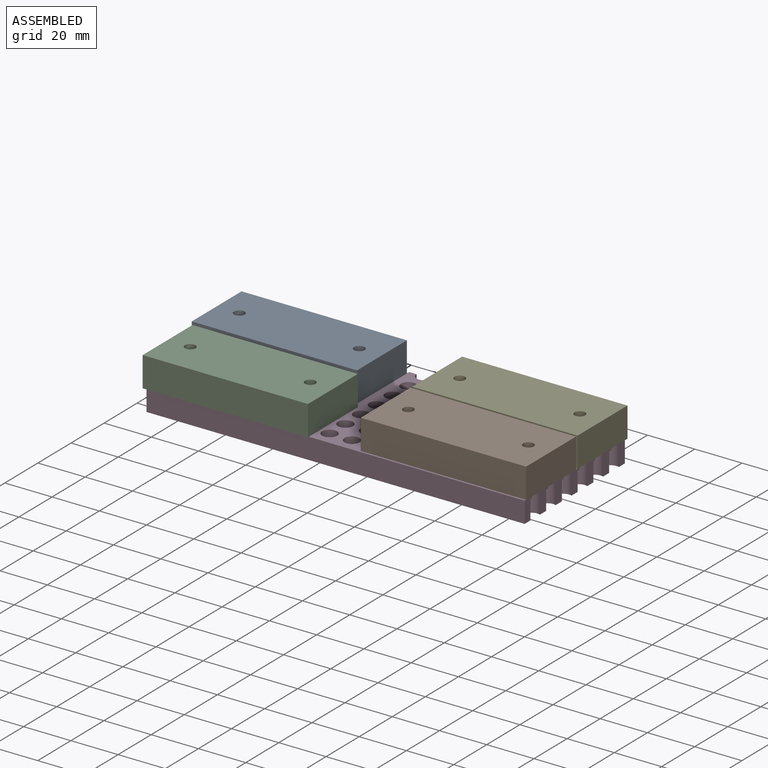
[diagram: assembled view]
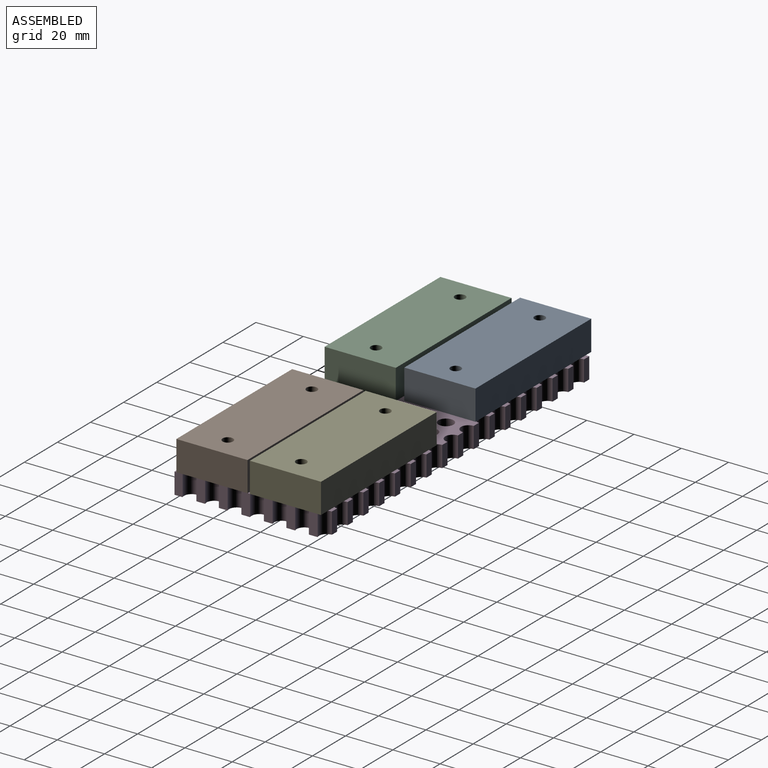
[diagram: assembled view, second angle]
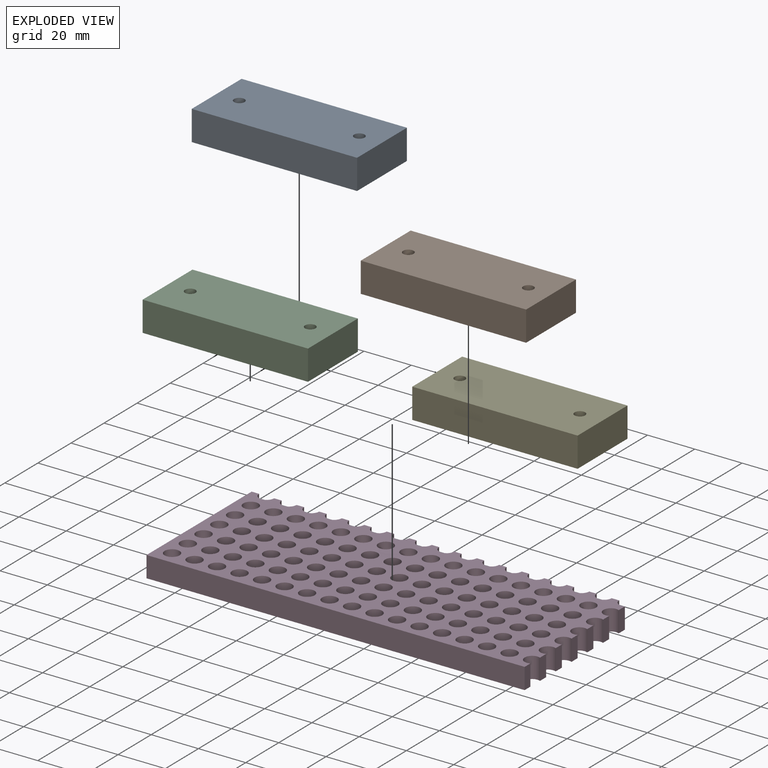
[diagram: exploded view]
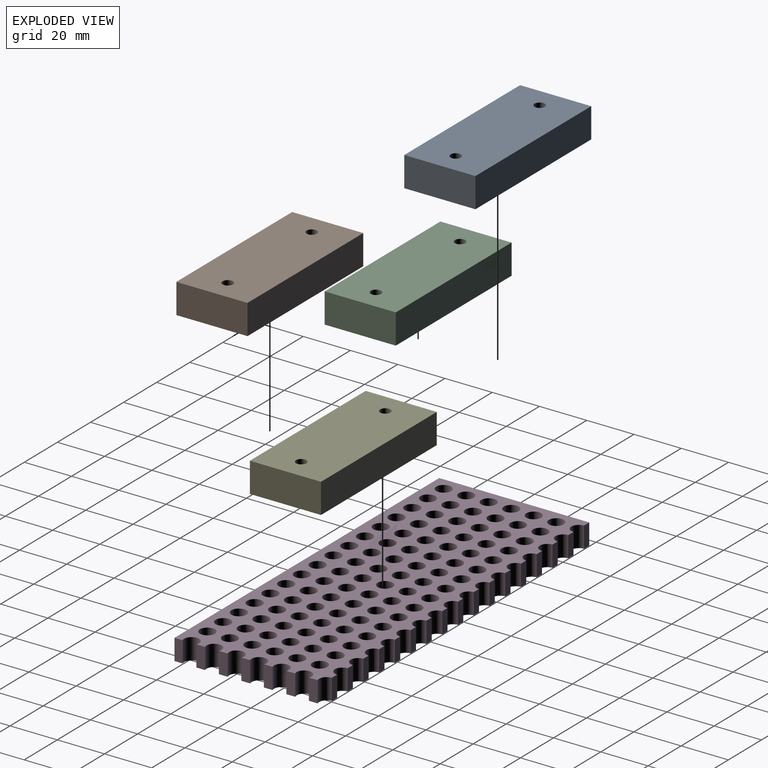
[diagram: exploded view, second angle]
ASSEMBLY  parts=5 mates=4
PART A: 8 faces, bbox 30.1x70x12.7 mm
  f0: plane 30.12x12.7mm, normal (0,-1,0), area 382.6mm2, adj f1,f3,f4,f5
  f1: plane 69.98x12.7mm, normal (1,0,0), area 888.7mm2, adj f0,f2,f4,f5
  f2: plane 30.12x12.7mm, normal (0,1,0), area 382.6mm2, adj f1,f3,f4,f5
  f3: plane 69.98x12.7mm, normal (-1,0,0), area 888.7mm2, adj f0,f2,f4,f5
  f4: plane 69.98x30.12mm, normal (0,0,1), area 2077mm2, adj f0,f1,f2,f3,f6,f7
  f5: plane 69.98x30.12mm, normal (0,0,-1), area 2077mm2, adj f0,f1,f2,f3,f6,f7
  f6: cylinder r=2.22mm len=12.7mm, axis (0,0,1), area 177.3mm2, adj f4,f5
  f7: cylinder r=2.22mm len=12.7mm, axis (0,0,1), area 177.3mm2, adj f4,f5
PART B: same geometry as A
PART C: same geometry as A
PART D: 147 faces, bbox 160x63.5x8.9 mm
  f0: plane 8.89x3.71mm, normal (1,0,0), area 32.9mm2, adj f26,f27,f66,f67
  f1: plane 8.89x3.71mm, normal (1,0,0), area 32.9mm2, adj f26,f27,f65,f66
  f2: plane 8.89x3.71mm, normal (1,0,0), area 32.9mm2, adj f26,f27,f64,f65
  f3: plane 8.89x3.71mm, normal (1,0,0), area 32.9mm2, adj f26,f27,f63,f64
  f4: plane 8.89x3.71mm, normal (1,0,0), area 32.9mm2, adj f26,f27,f62,f63
  f5: plane 8.89x3.71mm, normal (1,0,0), area 32.9mm2, adj f26,f27,f61,f62
  f6: plane 8.89x3.18mm, normal (0,1,0), area 28.2mm2, adj f26,f27,f37,f82
  f7: plane 8.89x3.18mm, normal (0,1,0), area 28.2mm2, adj f26,f27,f81,f82
  f8: plane 8.89x3.18mm, normal (0,1,0), area 28.2mm2, adj f26,f27,f80,f81
  f9: plane 8.89x3.18mm, normal (0,1,0), area 28.2mm2, adj f26,f27,f79,f80
  f10: plane 8.89x3.18mm, normal (0,1,0), area 28.2mm2, adj f26,f27,f78,f79
  f11: plane 8.89x3.18mm, normal (0,1,0), area 28.2mm2, adj f26,f27,f77,f78
  f12: plane 8.89x3.18mm, normal (0,1,0), area 28.2mm2, adj f26,f27,f76,f77
  f13: plane 8.89x3.18mm, normal (0,1,0), area 28.2mm2, adj f26,f27,f75,f76
  f14: plane 8.89x3.18mm, normal (0,1,0), area 28.2mm2, adj f26,f27,f74,f75
  f15: plane 8.89x3.18mm, normal (0,1,0), area 28.2mm2, adj f26,f27,f73,f74
  f16: plane 8.89x3.18mm, normal (0,1,0), area 28.2mm2, adj f26,f27,f72,f73
  f17: plane 8.89x3.18mm, normal (0,1,0), area 28.2mm2, adj f26,f27,f71,f72
  f18: plane 8.89x3.18mm, normal (0,1,0), area 28.2mm2, adj f26,f27,f70,f71
  f19: plane 8.89x3.18mm, normal (0,1,0), area 28.2mm2, adj f26,f27,f69,f70
  f20: plane 8.89x3.18mm, normal (0,1,0), area 28.2mm2, adj f26,f27,f68,f69
  f21: plane 8.89x3.18mm, normal (0,1,0), area 28.2mm2, adj f25,f26,f27,f37
  f22: plane 160.02x8.89mm, normal (0,-1,0), area 1422.6mm2, adj f23,f25,f26,f27
  f23: plane 8.89x3.44mm, normal (1,0,0), area 30.6mm2, adj f22,f26,f27,f67
  f24: plane 8.89x3.18mm, normal (0,1,0), area 28.2mm2, adj f26,f27,f61,f68
  f25: plane 63.5x8.89mm, normal (-1,0,0), area 564.5mm2, adj f21,f22,f26,f27
  f26: plane 160.02x63.5mm, normal (0,0,1), area 6713.8mm2, adj f0,f1,f2,f3,f4,f5,f6,f7
  f27: plane 160.02x63.5mm, normal (0,0,-1), area 6713.8mm2, adj f0,f1,f2,f3,f4,f5,f6,f7
  f28: cylinder r=3.17mm len=8.89mm, axis (0,0,1), area 177.3mm2, adj f26,f27
  f29: cylinder r=3.17mm len=8.89mm, axis (0,0,1), area 177.3mm2, adj f26,f27
  f30: cylinder r=3.17mm len=8.89mm, axis (0,0,1), area 177.3mm2, adj f26,f27
  f31: cylinder r=3.17mm len=8.89mm, axis (0,0,1), area 177.3mm2, adj f26,f27
  f32: cylinder r=3.17mm len=8.89mm, axis (0,0,1), area 177.3mm2, adj f26,f27
  f33: cylinder r=3.17mm len=8.89mm, axis (0,0,1), area 177.3mm2, adj f26,f27
  f34: cylinder r=3.17mm len=8.89mm, axis (0,0,1), area 177.3mm2, adj f26,f27
  f35: cylinder r=3.17mm len=8.89mm, axis (0,0,1), area 177.3mm2, adj f26,f27
  f36: cylinder r=3.17mm len=8.89mm, axis (0,0,1), area 177.3mm2, adj f26,f27
  f37: cylinder r=3.17mm len=8.89mm, axis (0,0,1), area 88.7mm2, adj f6,f21,f26,f27
  f38: cylinder r=3.17mm len=8.89mm, axis (0,0,1), area 177.3mm2, adj f26,f27
  f39: cylinder r=3.17mm len=8.89mm, axis (0,0,1), area 177.3mm2, adj f26,f27
  f40: cylinder r=3.17mm len=8.89mm, axis (0,0,1), area 177.3mm2, adj f26,f27
  f41: cylinder r=3.17mm len=8.89mm, axis (0,0,1), area 177.3mm2, adj f26,f27
  f42: cylinder r=3.17mm len=8.89mm, axis (0,0,1), area 177.3mm2, adj f26,f27
  f43: cylinder r=3.17mm len=8.89mm, axis (0,0,1), area 177.3mm2, adj f26,f27
  f44: cylinder r=3.17mm len=8.89mm, axis (0,0,1), area 177.3mm2, adj f26,f27
  f45: cylinder r=3.17mm len=8.89mm, axis (0,0,1), area 177.3mm2, adj f26,f27
  f46: cylinder r=3.17mm len=8.89mm, axis (0,0,1), area 177.3mm2, adj f26,f27
  f47: cylinder r=3.17mm len=8.89mm, axis (0,0,1), area 177.3mm2, adj f26,f27
  f48: cylinder r=3.17mm len=8.89mm, axis (0,0,1), area 177.3mm2, adj f26,f27
  f49: cylinder r=3.17mm len=8.89mm, axis (0,0,1), area 177.3mm2, adj f26,f27
  f50: cylinder r=3.17mm len=8.89mm, axis (0,0,1), area 177.3mm2, adj f26,f27
  f51: cylinder r=3.17mm len=8.89mm, axis (0,0,1), area 177.3mm2, adj f26,f27
  f52: cylinder r=3.17mm len=8.89mm, axis (0,0,1), area 177.3mm2, adj f26,f27
  f53: cylinder r=3.17mm len=8.89mm, axis (0,0,1), area 177.3mm2, adj f26,f27
  f54: cylinder r=3.17mm len=8.89mm, axis (0,0,1), area 177.3mm2, adj f26,f27
  f55: cylinder r=3.17mm len=8.89mm, axis (0,0,1), area 177.3mm2, adj f26,f27
  f56: cylinder r=3.17mm len=8.89mm, axis (0,0,1), area 177.3mm2, adj f26,f27
  f57: cylinder r=3.17mm len=8.89mm, axis (0,0,1), area 177.3mm2, adj f26,f27
  f58: cylinder r=3.17mm len=8.89mm, axis (0,0,1), area 177.3mm2, adj f26,f27
  f59: cylinder r=3.17mm len=8.89mm, axis (0,0,1), area 177.3mm2, adj f26,f27
  f60: cylinder r=3.17mm len=8.89mm, axis (0,0,1), area 177.3mm2, adj f26,f27
  f61: cylinder r=3.17mm len=8.89mm, axis (0,0,1), area 56mm2, adj f5,f24,f26,f27
  f62: cylinder r=3.17mm len=8.89mm, axis (0,0,1), area 111.9mm2, adj f4,f5,f26,f27
  f63: cylinder r=3.17mm len=8.89mm, axis (0,0,1), area 111.9mm2, adj f3,f4,f26,f27
  f64: cylinder r=3.17mm len=8.89mm, axis (0,0,1), area 111.9mm2, adj f2,f3,f26,f27
  f65: cylinder r=3.17mm len=8.89mm, axis (0,0,1), area 111.9mm2, adj f1,f2,f26,f27
  f66: cylinder r=3.17mm len=8.89mm, axis (0,0,1), area 111.9mm2, adj f0,f1,f26,f27
  f67: cylinder r=3.17mm len=8.89mm, axis (0,0,1), area 111.9mm2, adj f0,f23,f26,f27
  f68: cylinder r=3.17mm len=8.89mm, axis (0,0,1), area 88.7mm2, adj f20,f24,f26,f27
  f69: cylinder r=3.17mm len=8.89mm, axis (0,0,1), area 88.7mm2, adj f19,f20,f26,f27
  f70: cylinder r=3.17mm len=8.89mm, axis (0,0,1), area 88.7mm2, adj f18,f19,f26,f27
  f71: cylinder r=3.17mm len=8.89mm, axis (0,0,1), area 88.7mm2, adj f17,f18,f26,f27
  f72: cylinder r=3.17mm len=8.89mm, axis (0,0,1), area 88.7mm2, adj f16,f17,f26,f27
  f73: cylinder r=3.17mm len=8.89mm, axis (0,0,1), area 88.7mm2, adj f15,f16,f26,f27
  f74: cylinder r=3.17mm len=8.89mm, axis (0,0,1), area 88.7mm2, adj f14,f15,f26,f27
  f75: cylinder r=3.17mm len=8.89mm, axis (0,0,1), area 88.7mm2, adj f13,f14,f26,f27
  f76: cylinder r=3.17mm len=8.89mm, axis (0,0,1), area 88.7mm2, adj f12,f13,f26,f27
  f77: cylinder r=3.17mm len=8.89mm, axis (0,0,1), area 88.7mm2, adj f11,f12,f26,f27
  f78: cylinder r=3.17mm len=8.89mm, axis (0,0,1), area 88.7mm2, adj f10,f11,f26,f27
  f79: cylinder r=3.17mm len=8.89mm, axis (0,0,1), area 88.7mm2, adj f9,f10,f26,f27
  f80: cylinder r=3.17mm len=8.89mm, axis (0,0,1), area 88.7mm2, adj f8,f9,f26,f27
  f81: cylinder r=3.17mm len=8.89mm, axis (0,0,1), area 88.7mm2, adj f7,f8,f26,f27
  f82: cylinder r=3.17mm len=8.89mm, axis (0,0,1), area 88.7mm2, adj f6,f7,f26,f27
  f83: cylinder r=3.17mm len=8.89mm, axis (0,0,1), area 177.3mm2, adj f26,f27
  f84: cylinder r=3.17mm len=8.89mm, axis (0,0,1), area 177.3mm2, adj f26,f27
  f85: cylinder r=3.17mm len=8.89mm, axis (0,0,1), area 177.3mm2, adj f26,f27
  f86: cylinder r=3.17mm len=8.89mm, axis (0,0,1), area 177.3mm2, adj f26,f27
  f87: cylinder r=3.17mm len=8.89mm, axis (0,0,1), area 177.3mm2, adj f26,f27
  f88: cylinder r=3.17mm len=8.89mm, axis (0,0,1), area 177.3mm2, adj f26,f27
  f89: cylinder r=3.17mm len=8.89mm, axis (0,0,1), area 177.3mm2, adj f26,f27
  f90: cylinder r=3.17mm len=8.89mm, axis (0,0,1), area 177.3mm2, adj f26,f27
  f91: cylinder r=3.17mm len=8.89mm, axis (0,0,1), area 177.3mm2, adj f26,f27
  f92: cylinder r=3.17mm len=8.89mm, axis (0,0,1), area 177.3mm2, adj f26,f27
  f93: cylinder r=3.17mm len=8.89mm, axis (0,0,1), area 177.3mm2, adj f26,f27
  f94: cylinder r=3.17mm len=8.89mm, axis (0,0,1), area 177.3mm2, adj f26,f27
  f95: cylinder r=3.17mm len=8.89mm, axis (0,0,1), area 177.3mm2, adj f26,f27
  f96: cylinder r=3.17mm len=8.89mm, axis (0,0,1), area 177.3mm2, adj f26,f27
  f97: cylinder r=3.17mm len=8.89mm, axis (0,0,1), area 177.3mm2, adj f26,f27
  f98: cylinder r=3.17mm len=8.89mm, axis (0,0,1), area 177.3mm2, adj f26,f27
  f99: cylinder r=3.17mm len=8.89mm, axis (0,0,1), area 177.3mm2, adj f26,f27
  f100: cylinder r=3.17mm len=8.89mm, axis (0,0,1), area 177.3mm2, adj f26,f27
  f101: cylinder r=3.17mm len=8.89mm, axis (0,0,1), area 177.3mm2, adj f26,f27
  f102: cylinder r=3.17mm len=8.89mm, axis (0,0,1), area 177.3mm2, adj f26,f27
  f103: cylinder r=3.17mm len=8.89mm, axis (0,0,1), area 177.3mm2, adj f26,f27
  f104: cylinder r=3.17mm len=8.89mm, axis (0,0,1), area 177.3mm2, adj f26,f27
  f105: cylinder r=3.17mm len=8.89mm, axis (0,0,1), area 177.3mm2, adj f26,f27
  f106: cylinder r=3.17mm len=8.89mm, axis (0,0,1), area 177.3mm2, adj f26,f27
  f107: cylinder r=3.17mm len=8.89mm, axis (0,0,1), area 177.3mm2, adj f26,f27
  f108: cylinder r=3.17mm len=8.89mm, axis (0,0,1), area 177.3mm2, adj f26,f27
  f109: cylinder r=3.17mm len=8.89mm, axis (0,0,1), area 177.3mm2, adj f26,f27
  f110: cylinder r=3.17mm len=8.89mm, axis (0,0,1), area 177.3mm2, adj f26,f27
  f111: cylinder r=3.17mm len=8.89mm, axis (0,0,1), area 177.3mm2, adj f26,f27
  f112: cylinder r=3.17mm len=8.89mm, axis (0,0,1), area 177.3mm2, adj f26,f27
  f113: cylinder r=3.17mm len=8.89mm, axis (0,0,1), area 177.3mm2, adj f26,f27
  f114: cylinder r=3.17mm len=8.89mm, axis (0,0,1), area 177.3mm2, adj f26,f27
  f115: cylinder r=3.17mm len=8.89mm, axis (0,0,1), area 177.3mm2, adj f26,f27
  f116: cylinder r=3.17mm len=8.89mm, axis (0,0,1), area 177.3mm2, adj f26,f27
  f117: cylinder r=3.17mm len=8.89mm, axis (0,0,1), area 177.3mm2, adj f26,f27
  f118: cylinder r=3.17mm len=8.89mm, axis (0,0,1), area 177.3mm2, adj f26,f27
  f119: cylinder r=3.17mm len=8.89mm, axis (0,0,1), area 177.3mm2, adj f26,f27
  f120: cylinder r=3.17mm len=8.89mm, axis (0,0,1), area 177.3mm2, adj f26,f27
  f121: cylinder r=3.17mm len=8.89mm, axis (0,0,1), area 177.3mm2, adj f26,f27
  f122: cylinder r=3.17mm len=8.89mm, axis (0,0,1), area 177.3mm2, adj f26,f27
  f123: cylinder r=3.17mm len=8.89mm, axis (0,0,1), area 177.3mm2, adj f26,f27
  f124: cylinder r=3.17mm len=8.89mm, axis (0,0,1), area 177.3mm2, adj f26,f27
  f125: cylinder r=3.17mm len=8.89mm, axis (0,0,1), area 177.3mm2, adj f26,f27
  f126: cylinder r=3.17mm len=8.89mm, axis (0,0,1), area 177.3mm2, adj f26,f27
  f127: cylinder r=3.17mm len=8.89mm, axis (0,0,1), area 177.3mm2, adj f26,f27
  f128: cylinder r=3.17mm len=8.89mm, axis (0,0,1), area 177.3mm2, adj f26,f27
  f129: cylinder r=3.17mm len=8.89mm, axis (0,0,1), area 177.3mm2, adj f26,f27
  f130: cylinder r=3.17mm len=8.89mm, axis (0,0,1), area 177.3mm2, adj f26,f27
  f131: cylinder r=3.17mm len=8.89mm, axis (0,0,1), area 177.3mm2, adj f26,f27
  f132: cylinder r=3.17mm len=8.89mm, axis (0,0,1), area 177.3mm2, adj f26,f27
  f133: cylinder r=3.17mm len=8.89mm, axis (0,0,1), area 177.3mm2, adj f26,f27
  f134: cylinder r=3.17mm len=8.89mm, axis (0,0,1), area 177.3mm2, adj f26,f27
  f135: cylinder r=3.17mm len=8.89mm, axis (0,0,1), area 177.3mm2, adj f26,f27
  f136: cylinder r=3.17mm len=8.89mm, axis (0,0,1), area 177.3mm2, adj f26,f27
  f137: cylinder r=3.17mm len=8.89mm, axis (0,0,1), area 177.3mm2, adj f26,f27
  f138: cylinder r=3.17mm len=8.89mm, axis (0,0,1), area 177.3mm2, adj f26,f27
  f139: cylinder r=3.17mm len=8.89mm, axis (0,0,1), area 177.3mm2, adj f26,f27
  f140: cylinder r=3.17mm len=8.89mm, axis (0,0,1), area 177.3mm2, adj f26,f27
  f141: cylinder r=3.17mm len=8.89mm, axis (0,0,1), area 177.3mm2, adj f26,f27
  f142: cylinder r=3.17mm len=8.89mm, axis (0,0,1), area 177.3mm2, adj f26,f27
  f143: cylinder r=3.17mm len=8.89mm, axis (0,0,1), area 177.3mm2, adj f26,f27
  f144: cylinder r=3.17mm len=8.89mm, axis (0,0,1), area 177.3mm2, adj f26,f27
  f145: cylinder r=3.17mm len=8.89mm, axis (0,0,1), area 177.3mm2, adj f26,f27
  f146: cylinder r=3.17mm len=8.89mm, axis (0,0,1), area 177.3mm2, adj f26,f27
PART E: same geometry as A
PLACE A rot(axis=(0,0,-1),90deg) t=(13.28,-28.8,7.32)mm
PLACE B rot(axis=(0.71,0.71,0),180deg) t=(106.63,50.68,20.02)mm
PLACE C rot(axis=(0.71,0.71,0),180deg) t=(15.19,49.41,20.02)mm
PLACE D t=(-11.62,-20.5,-1.57)mm
PLACE E rot(axis=(0.71,0.71,0),180deg) t=(106.63,81.79,20.02)mm
MATE fastened C.f7 <-> D.f26  axis (0,0,-1) through (-3.37,-5.89,7.32)mm
MATE fastened E.f6 <-> D.f26  axis (0,0,-1) through (138.87,26.49,7.32)mm
MATE fastened B.f6 <-> D.f26  axis (0,0,-1) through (138.87,-4.62,7.32)mm
MATE fastened A.f7 <-> D.f26  axis (0,0,-1) through (-5.27,26.49,7.32)mm
